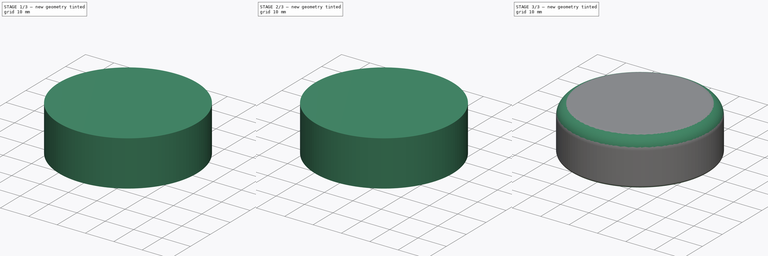
[diagram: build sequence overview — one tinted view per stage of 3, left to right]
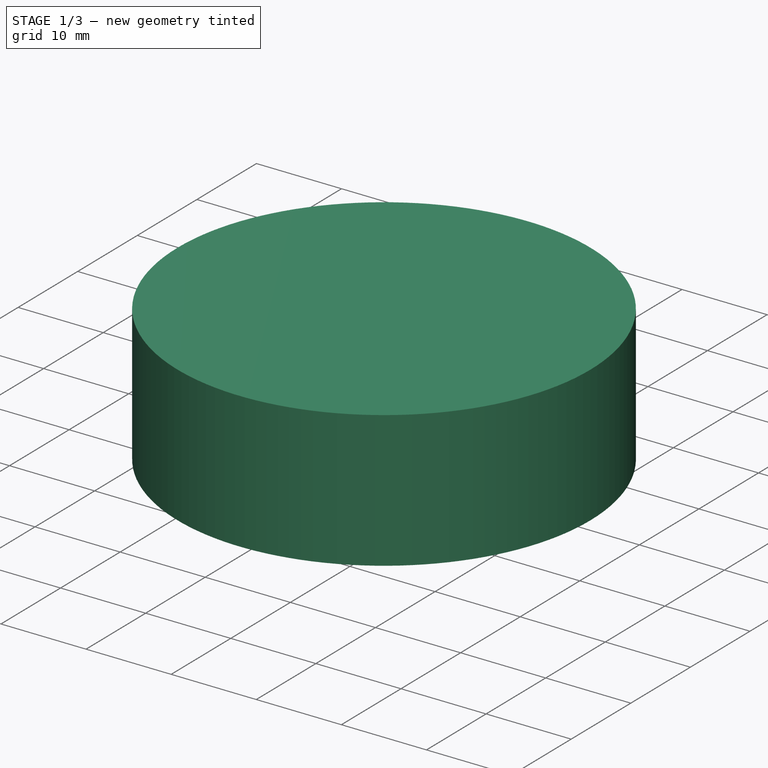
[diagram: stage 1 of 3 — iso view after this stage's code; geometry added in this stage tinted green]
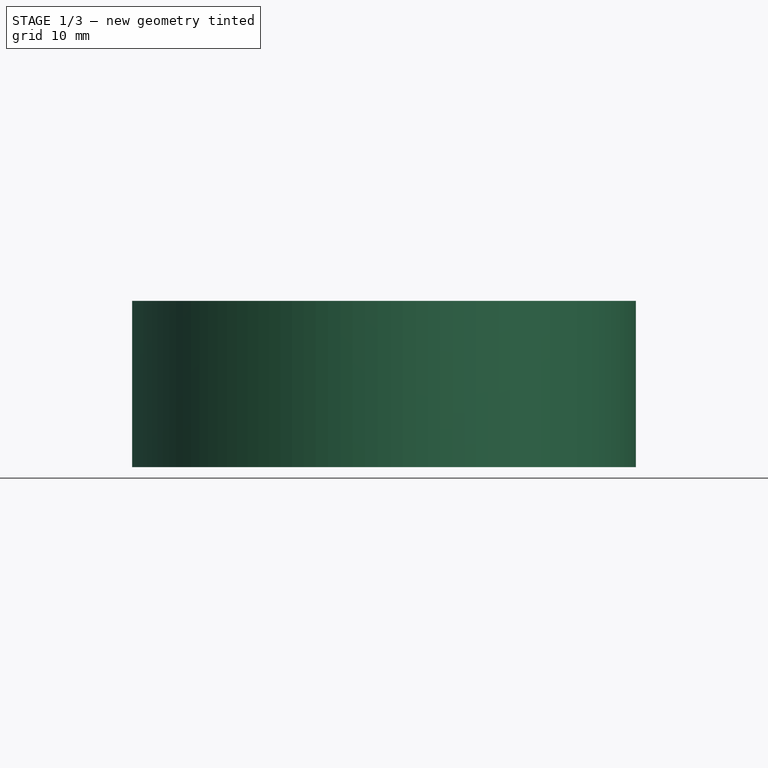
[diagram: stage 1 of 3 — front view after this stage's code; geometry added in this stage tinted green]
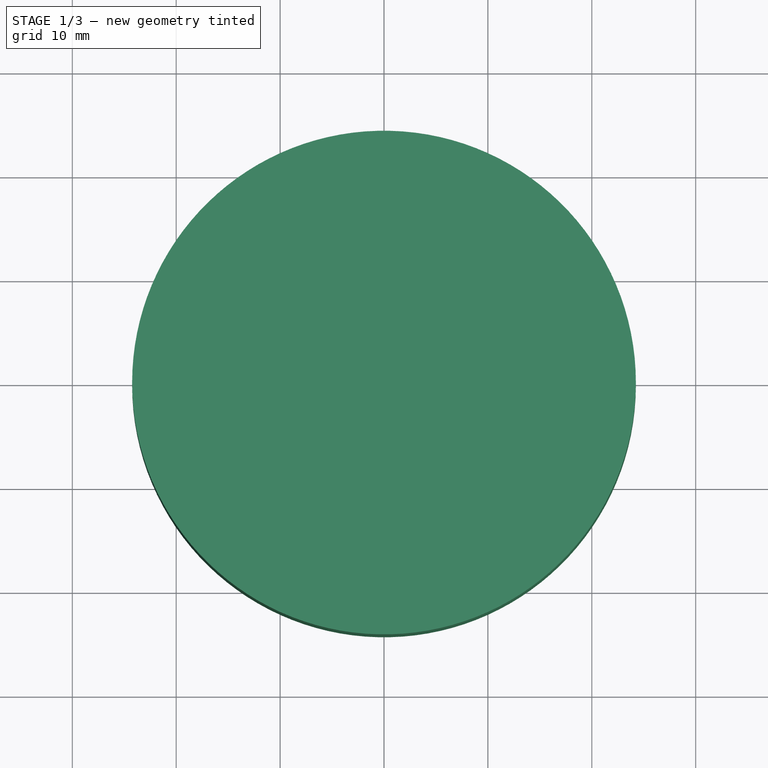
[diagram: stage 1 of 3 — top view after this stage's code; geometry added in this stage tinted green]
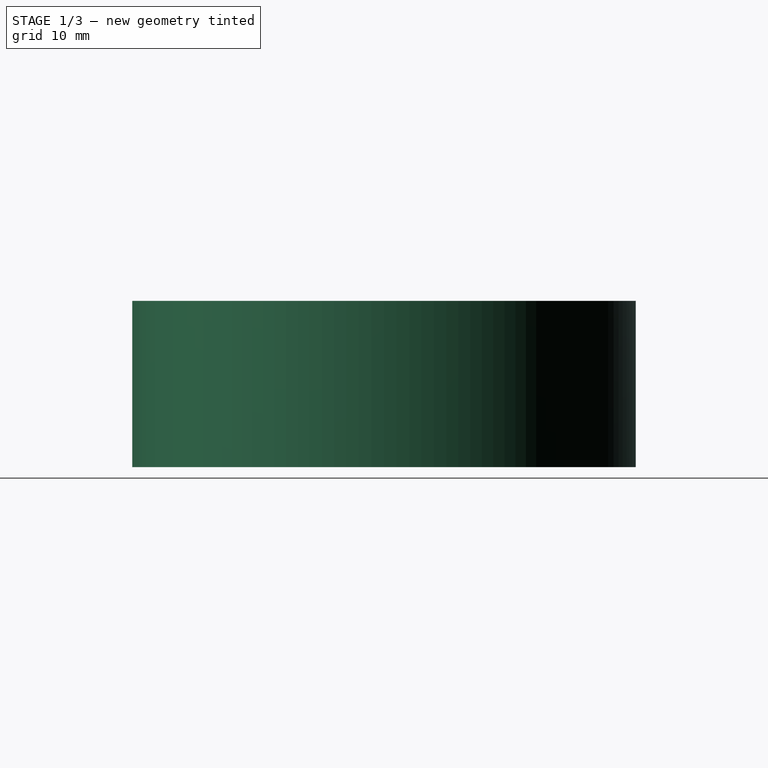
[diagram: stage 1 of 3 — right view after this stage's code; geometry added in this stage tinted green]
FCSTD DOCUMENT  (FreeCAD 0.21R33771 (Git))
Label: krishka2
License: All rights reserved
LicenseURL: http://en.wikipedia.org/wiki/All_rights_reserved
objects: PartDesign::Body×3, PartDesign::Fillet×2, Part::Part2DObjectPython×1, Part::Helix×1, PartDesign::AdditivePipe×1, Sketcher::SketchObject×1, PartDesign::Pad×1, Part::Cut×1, PartDesign::FeatureBase×1
note: 16 computed .brp shape members not serialized (recipe doc carries the construction recipe); baked Part::Feature solids carry a one-line shape summary decoded from their .brp

FEATURE [Part::Part2DObjectPython] Bottle_M_ThreadProfile  # Draft 2D object (typed FeaturePython)
  Area = 1294.96
  Closed = true
  Continuity = C2
  Height = 10
  Helix = Helix
  Instructions = Expand this with the ... button to view instructions | Sweep this object along a helix of the same pitch to produce your thread. | It is recommended to make the helix in the ThreadProfile workbench. | If there is an active Body the ThreadProfile object will be put into it.,If not it can be dragged and dropped into the body later. | If there is an active Body when the helix is made there will be made a ShapeBinder for it | For internal threads you will need to cut the Sweep object out of a cylinder, or if using Part Design sweep it as a Subtractive Pipe. | Always use Frenet mode | I have provided some presets, but it is possible there could be some errors.  Double check for mission critical applications. | Also, the tolerances might be different from what you wish to have.  I believe the internal minor diameters are all minimum and the external are all maximum.
  InternalOrExternal = 1
  MakeFace = true
  MinorDiameter = 39.62
  Parameterization = 1
  Pitch = 4.23333
  Points = (120) [(19.7831,1.03823,0),(19.7049,2.07397,0),(19.5773,3.10513,0),(19.402,4.12993,0),(19.1796,5.14665,0),(18.9132,6.15439,0),(18.6098,7.15451,0),+113 more]
  Presets = 0
  Quality = 6
  ThreadCount = 3
  Variants = 0
  Version = 1.89
  external2S_data = [-0.00461051,-0.00886426,-0.0128148,-0.0165028,-0.0199596,-0.0232105,-0.0262759,-0.0291725,-0.0319145,-0.0345137,-0.0369805,-0.0393235,-0.0415505,-0.0436681,-0.0456823,-0.0475981,-0.0494204,-0.0511532,-0.0528003,-0.0543649,-0.0558502,+698 more]
  external3S_data = [-0.00677828,-0.0128149,-0.0182584,-0.0232106,-0.0277444,-0.0319145,-0.0357632,-0.0393236,-0.0426227,-0.0456823,-0.0485208,-0.0511533,-0.0535928,-0.0558503,-0.0579353,-0.059856,-0.0616195,-0.0632319,-0.0646984,-0.0660239,-0.0672123,+698 more]
  external45_data = [-0.00137363,-0.00271738,-0.00403219,-0.00531893,-0.00657844,-0.00781148,-0.00901878,-0.010201,-0.0113589,-0.012493,-0.0136039,-0.0146921,-0.0157583,-0.0168028,-0.0178261,-0.0188288,-0.0198112,-0.0207738,-0.0217169,-0.0226409,-0.0235462,+698 more]
  external_data = [6.8683e-05,0.000137366,0.000212133,0.000297079,0.000434727,0.000654671,0.000874565,0.00109436,0.00135915,0.00172112,0.00208281,0.0024438,0.00285056,0.00336131,0.0038717,0.00438141,0.0049559,0.00562874,0.00630075,0.00697193,0.00775661,+698 more]
  internal2S_data = [0,0,0,0,0,0,0,0,0,0,0,0,0,0,0,0,0,0,0,0,0,0,0,0,0,0,0,0,0,0,0,0,0,0,0,0,0,0,0,0,0,0,0,0,0,0,0,0,0,0,0,0,0,0,0,0,0,0,0,0,0,0,0,0,0,0,0,0,0,0,0,0,0,0,0,0,0,0,0,0,0,0,0,0,0,0,0,0,0,0,0.00481128,0.00962256,0.0144338,0.0192451,0.0240564,+624 more]
  internal3S_data = [0,0,0,0,0,0,0,0,0,0,0,0,0,0,0,0,0,0,0,0,0,0,0,0,0,0,0,0,0,0,0,0,0,0,0,0,0,0,0,0,0,0,0,0,0,0,0,0,0,0,0,0,0,0,0,0,0,0,0,0,0.00721688,0.0144338,0.0216506,0.0288675,0.0360844,0.0433013,0.0505181,0.057735,0.0649519,0.0721688,0.0793857,0.0866025,+647 more]
  internal45_data = [0,0,0,0,0,0,0,0,0,0,0,0,0,0,0,0,0,0,0,0,0,0,0,0,0,0,0,0,0,0,0,0,0,0,0,0,0,0,0,0,0,0,0,0,0,0,0,0,0,0,0,0,0,0,0,0,0,0,0,0,0,0,0,0,0,0,0,0,0,0,0,0,0,0,0,0,0,0,0,0,0,0,0,0,0,0,0,0,0,0,0,0,0,0,0,0,0,0,0,0,0,0,0,0,0,0,0,0,0,0,0,0,0,0,0,0,0,0,0,0,+599 more]
  internal_data = [6.8683e-05,0.000137366,0.000212133,0.000297079,0.000434727,0.000654671,0.000874565,0.00109436,0.00135915,0.00172112,0.00208281,0.0024438,0.00285056,0.00336131,0.0038717,0.00438141,0.0049559,0.00562874,0.00630075,0.00697193,0.00775661,+698 more]
  preset_names = Bottle presets | 13-SP415(M) 2.1166666666666667 | 15-SP415(M) 2.1166666666666667 | 18-SP400(M) 3.175 | 20-SP400(M) 3.175 | 22-SP400(M) 3.175 | 24-SP400(M) 3.175 | 28-SP400(M) 4.233333333333333 | 30-SP400(M) 4.233333333333333 | 33-SP400(M) 4.233333333333333 | 35-SP400(M) 4.233333333333333 | 38-SP400(M) 4.233333333333333 | 40-SP400(M) 4.233333333333333 | 43-SP400(M) 4.233333333333333 | 45-SP400(M) 4.233333333333333 | 48-SP400(M) 4.233333333333333 | 51-SP400(M) 4.233333333333333 | 53-SP400(M) 4.233333333333333 | 58-SP400(M) 4.233333333333333 | 60-SP400(M) 4.233333333333333 | 63-SP400(M) 4.233333333333333 | 66-SP400(M) 4.233333333333333 | 70-SP400(M) 4.233333333333333 | 75-SP400(M) 4.233333333333333 | 77-SP400(M) 4.233333333333333 | 83-SP400(M) 5.08 | 89-SP400(M) 5.08 | 100-SP400(M) 5.08 | 110-SP400(M) 5.08 | 120-SP400(M) 5.08
  presets_data = [0,0,0,2.11667,11.53,11.78,2.11667,13.23,13.48,3.175,15.75,16,3.175,17.75,18,3.175,19.76,20.01,3.175,21.74,21.99,4.23333,25.25,25.5,4.23333,26.23,26.48,4.23333,29.74,29.99,4.23333,32.25,32.5,4.23333,35.1,35.35,4.23333,37.75,38,4.23333,39.62,+49 more]
FEATURE [Part::Helix] Helix
  Angle = 0
  AttacherType = Attacher::AttachEngine3D
  Height = 12.7
  LocalCoord = 0
  Pitch = 4.23333
  Radius = 1
  SegmentLength = 1
  Style = 0
  expr: AttachmentOffset = Bottle_M_ThreadProfile.AttachmentOffset
  expr: Height = Bottle_M_ThreadProfile.ThreadCount * Bottle_M_ThreadProfile.Pitch
  expr: MapMode = Bottle_M_ThreadProfile.MapMode
  expr: MapPathParameter = Bottle_M_ThreadProfile.MapPathParameter
  expr: MapReversed = Bottle_M_ThreadProfile.MapReversed
  expr: Pitch = Bottle_M_ThreadProfile.Pitch
  expr: SegmentLength = 1
  expr: Support = Bottle_M_ThreadProfile.Support
FEATURE [PartDesign::AdditivePipe] AdditivePipe
  AuxilleryCurvelinear = true
  AuxillerySpineTangent = false
  Binormal = (0,0,0)
  Mode = 2
  Profile = -> Bottle_M_ThreadProfile
  Refine = true
  Spine = -> Helix
  SpineTangent = false
  Transformation = 0
  Transition = 0
FEATURE [PartDesign::Body] Body
  Group = -> [Bottle_M_ThreadProfile,Helix,AdditivePipe]
  Origin = -> Origin
  Tip = -> AdditivePipe
FEATURE [Sketcher::SketchObject] Sketch001
  FullyConstrained = false
  MapMode = 5
  Support = -> [XY_Plane001]
  sketch-geometry (1):
    g0: Circle CenterX=0 CenterY=0 CenterZ=0 NormalX=0 NormalY=0 NormalZ=1 AngleXU=0 Radius=24.2423
  constraints (1):
    c: Coincident(g0,g-1)
FEATURE [PartDesign::Pad] Pad
  Direction = (0,0,1)
  Length = 16
  Length2 = 10
  Profile = -> Sketch001
  ReferenceAxis = -> Sketch001 [N_Axis]
  Refine = true
  Type = 0
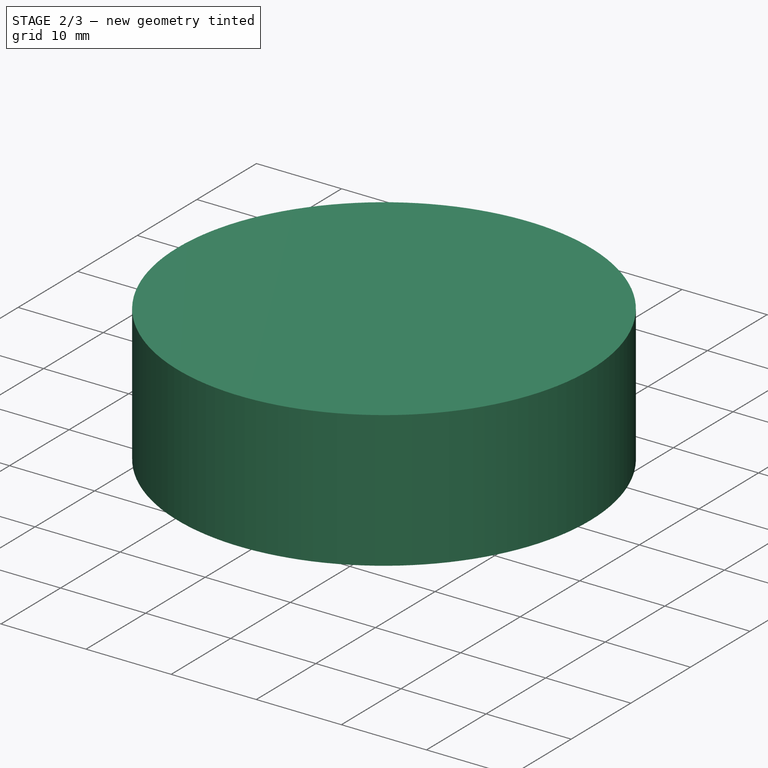
[diagram: stage 2 of 3 — iso view after this stage's code; geometry added in this stage tinted green]
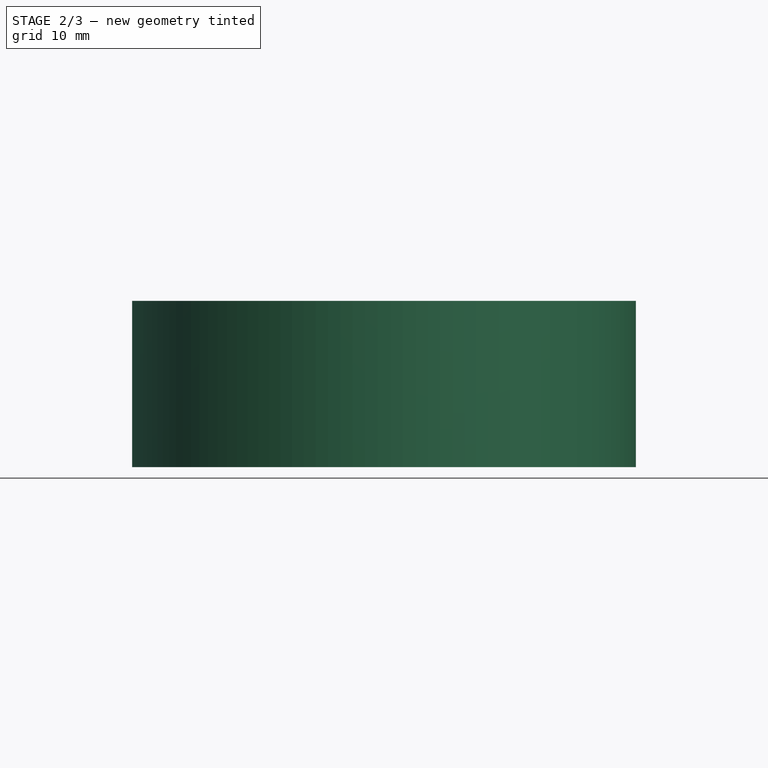
[diagram: stage 2 of 3 — front view after this stage's code; geometry added in this stage tinted green]
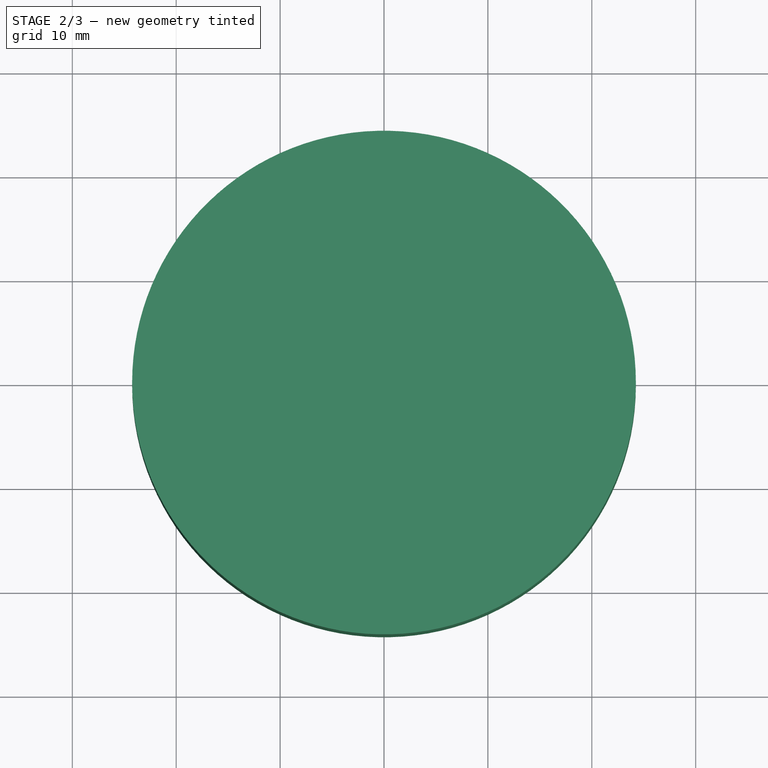
[diagram: stage 2 of 3 — top view after this stage's code; geometry added in this stage tinted green]
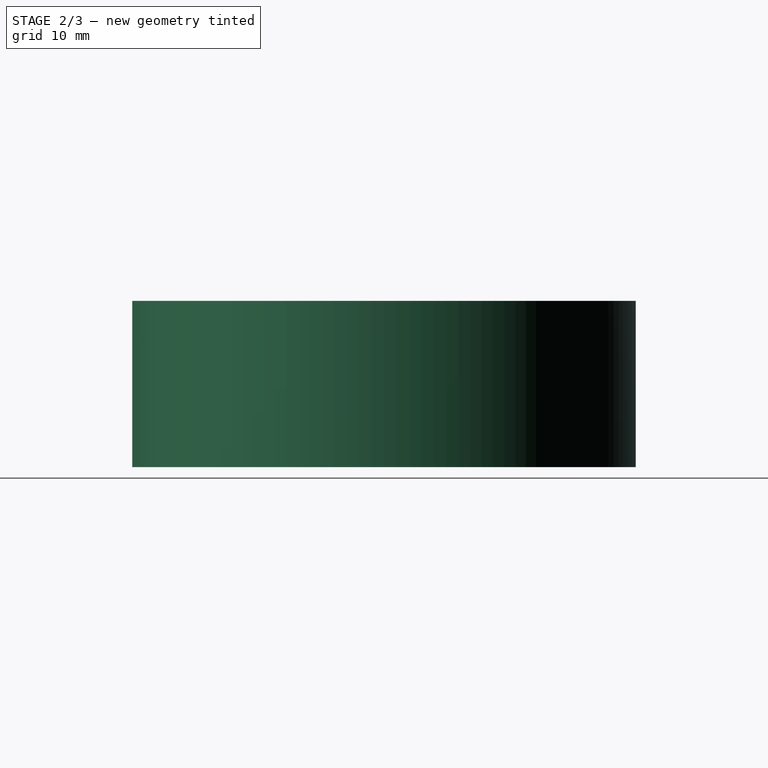
[diagram: stage 2 of 3 — right view after this stage's code; geometry added in this stage tinted green]
FEATURE [PartDesign::Body] Body001
  Group = -> [Sketch001,Pad]
  Origin = -> Origin001
  Tip = -> Pad
FEATURE [Part::Cut] Cut
  Base = -> Body001
  Refine = true
  Tool = -> Body
FEATURE [PartDesign::FeatureBase] BaseFeature
  BaseFeature = -> Cut
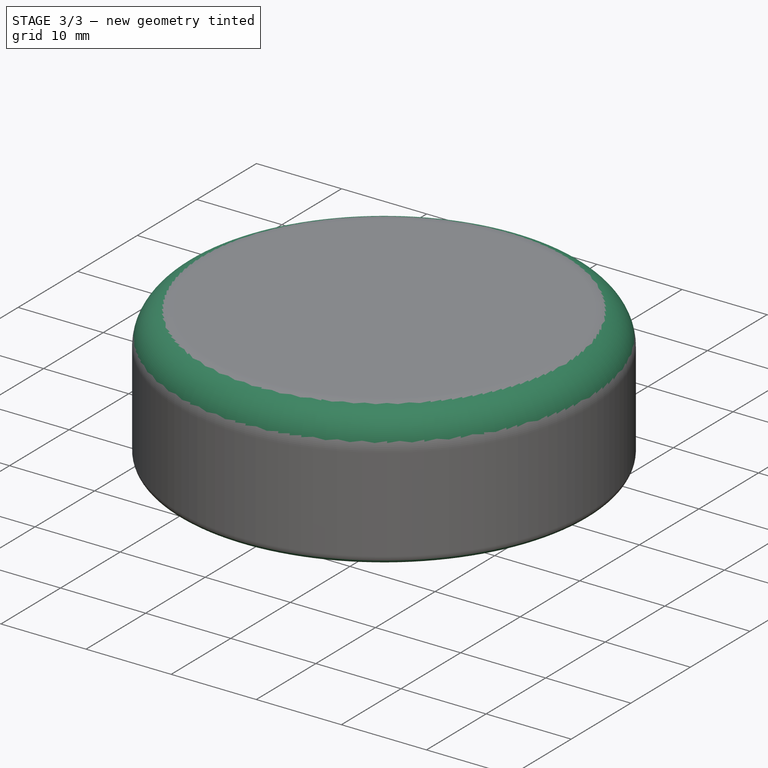
[diagram: stage 3 of 3 — iso view after this stage's code; geometry added in this stage tinted green]
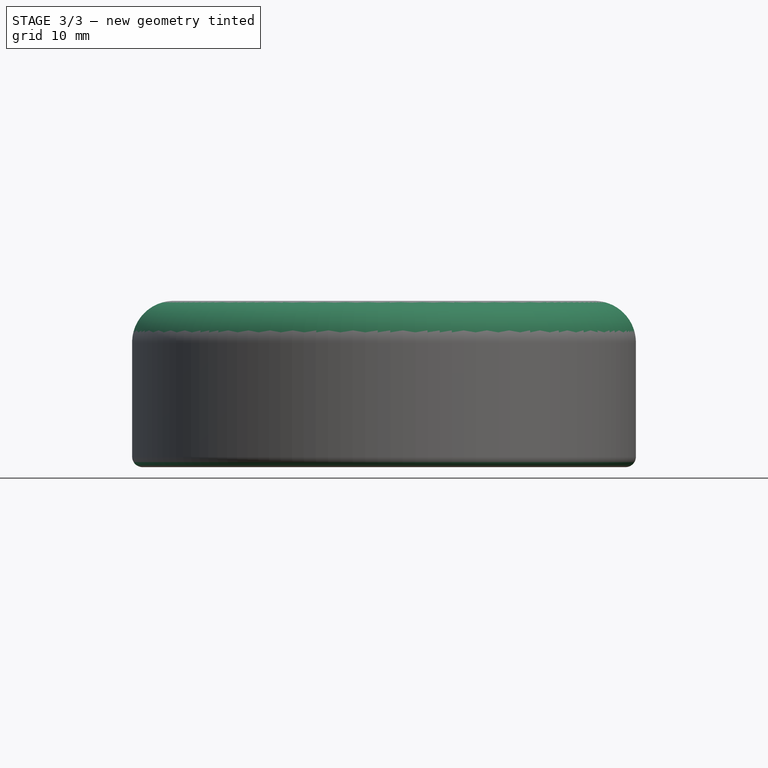
[diagram: stage 3 of 3 — front view after this stage's code; geometry added in this stage tinted green]
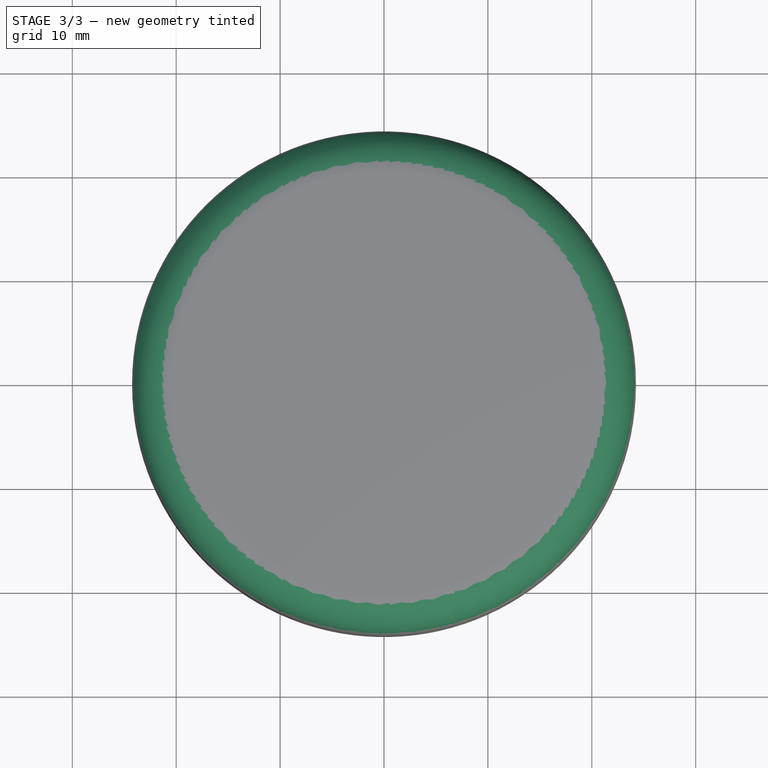
[diagram: stage 3 of 3 — top view after this stage's code; geometry added in this stage tinted green]
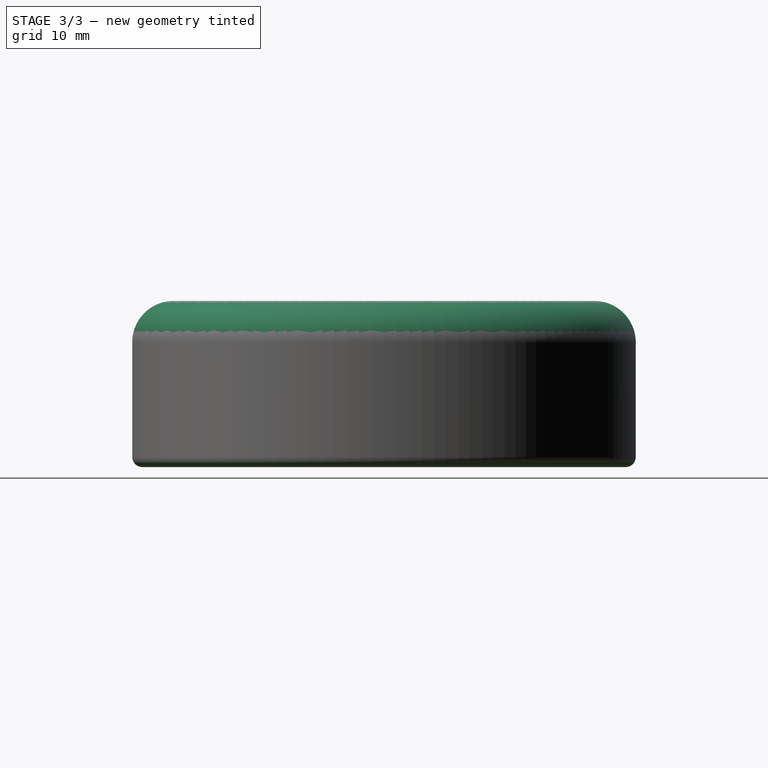
[diagram: stage 3 of 3 — right view after this stage's code; geometry added in this stage tinted green]
FEATURE [PartDesign::Fillet] Fillet
  Base = -> BaseFeature [Edge3]
  BaseFeature = -> BaseFeature
  Radius = 4
  Refine = true
  SupportTransform = false
  UseAllEdges = false
FEATURE [PartDesign::Fillet] Fillet001
  Base = -> Fillet [Edge3]
  BaseFeature = -> Fillet
  Radius = 1
  Refine = true
  SupportTransform = false
  UseAllEdges = false
FEATURE [PartDesign::Body] Body002
  BaseFeature = -> Cut
  Group = -> [BaseFeature,Fillet,Fillet001]
  Origin = -> Origin002
  Tip = -> Fillet001
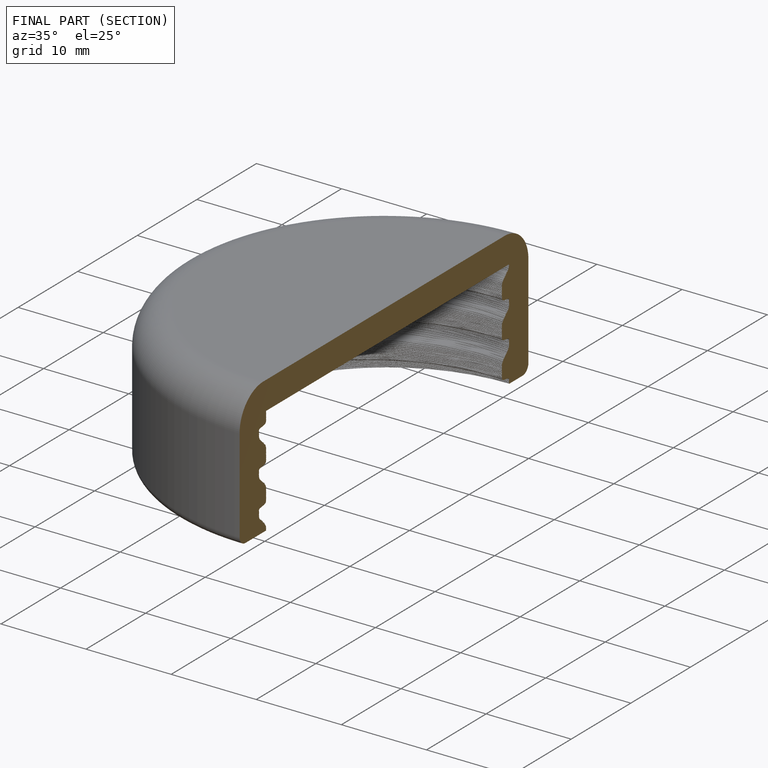
[diagram: finished part — half-section view (interior)]
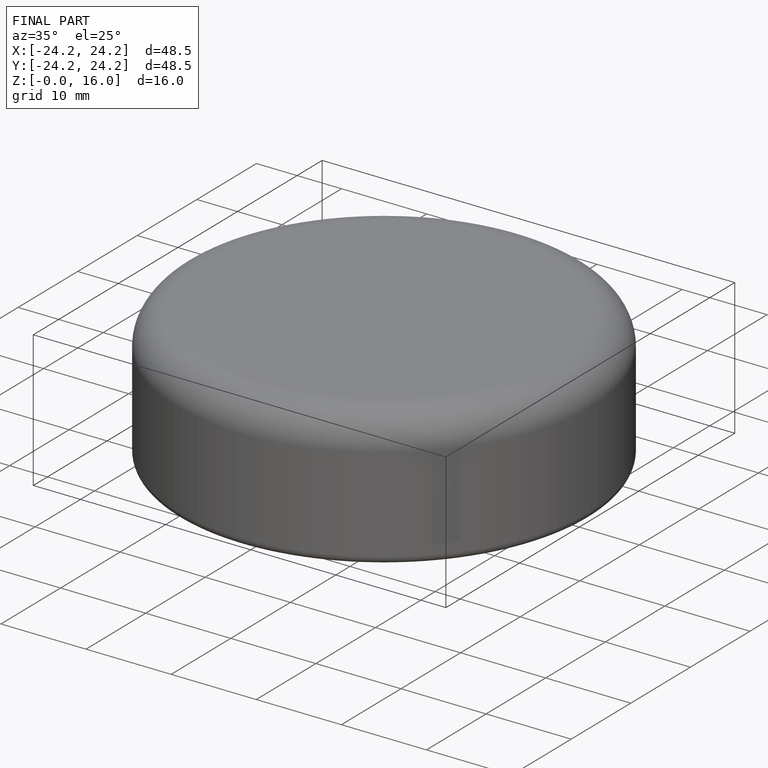
[diagram: finished part — iso view with bounding-box wireframe]
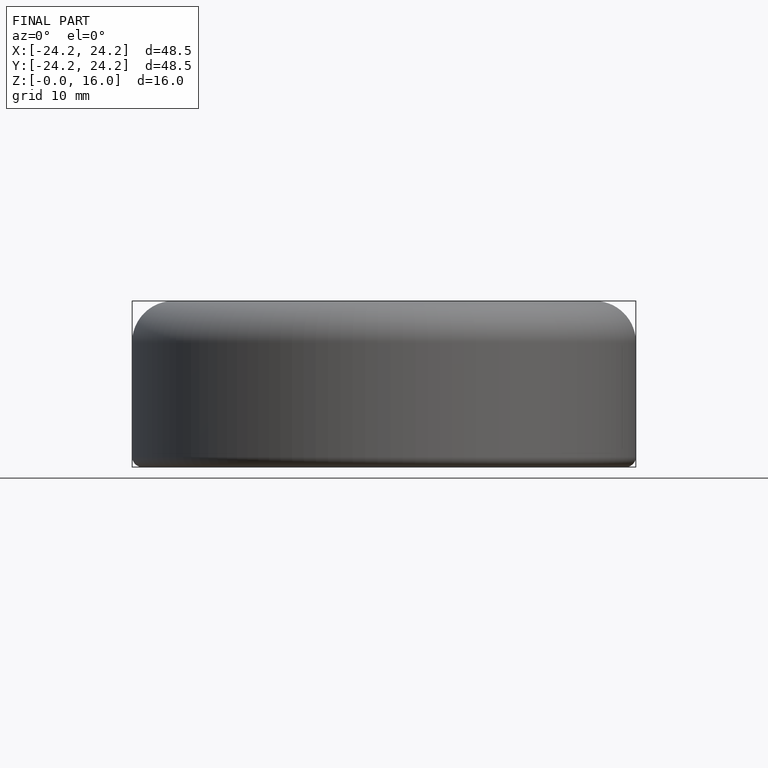
[diagram: finished part — front view with bounding-box wireframe]
